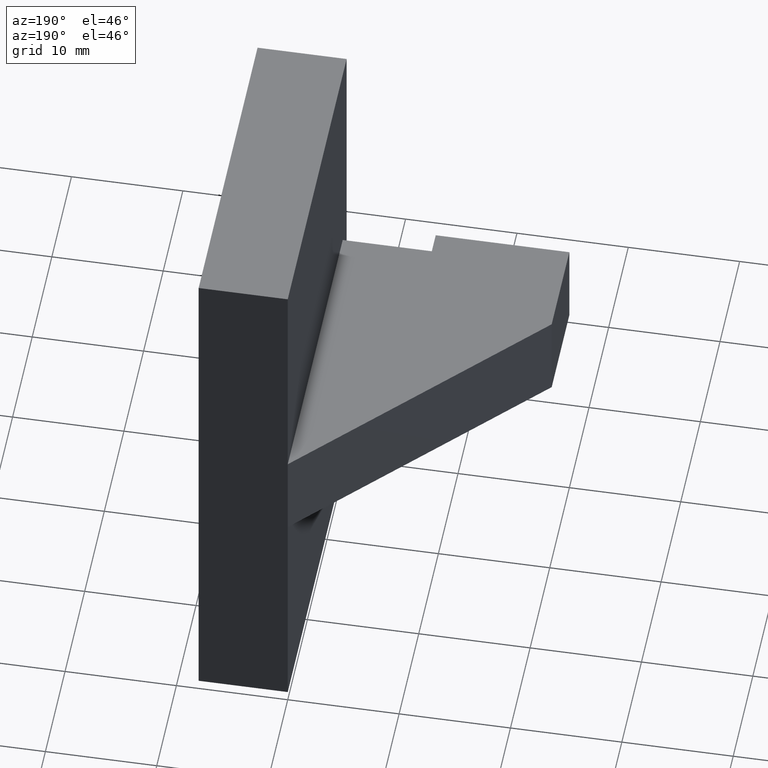
[diagram: clean part render]
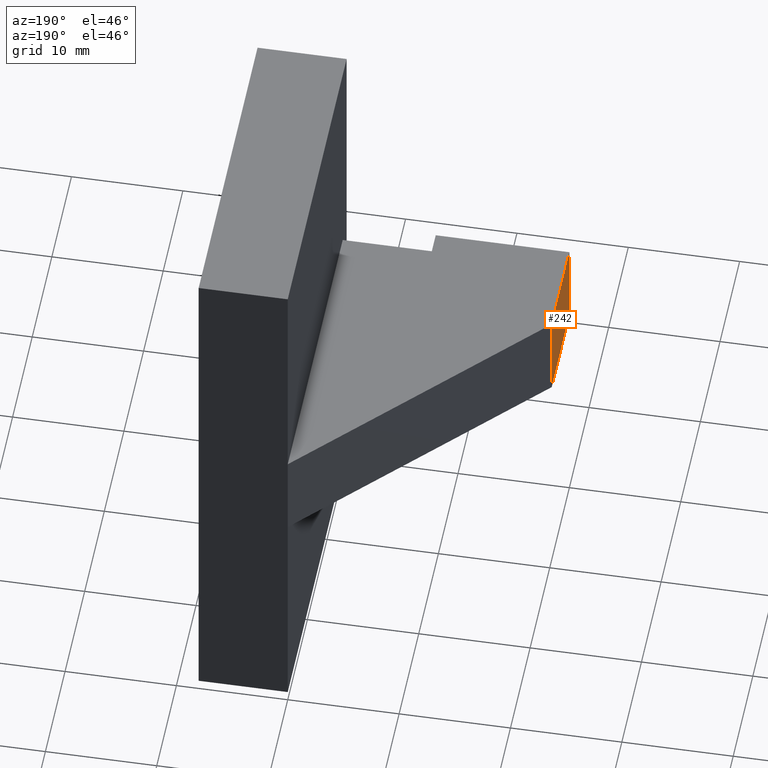
[diagram: same view with one face highlighted and labeled with its STEP entity id]
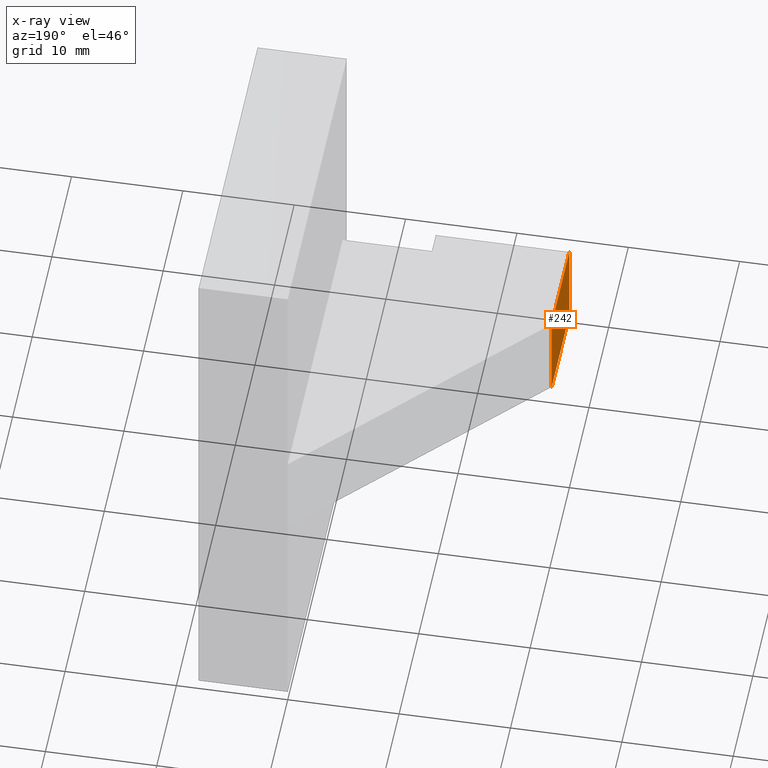
[diagram: x-ray of the same camera — body ghosted, the highlighted face saturated]
A machine part, auxiliary view. The second image highlights one B-rep face of the part: STEP entity #242.
The next image is the same camera in x-ray: the body ghosted, the highlighted face saturated — about 0% of this face is hidden behind the body in this view.
In plain terms, the highlighted planar face has unit normal (-1, -0, 0).
Its self-contained STEP definition (entity closure, byte-faithful):
#28=FACE_OUTER_BOUND('',#41,.T.);
#41=EDGE_LOOP('',(#208,#209,#210,#211));
#61=LINE('',#380,#92);
#66=LINE('',#388,#97);
#72=LINE('',#400,#103);
#73=LINE('',#402,#104);
#92=VECTOR('',#314,10.);
#97=VECTOR('',#321,10.);
#103=VECTOR('',#333,10.);
#104=VECTOR('',#336,10.);
#117=VERTEX_POINT('',#376);
#119=VERTEX_POINT('',#379);
#121=VERTEX_POINT('',#386);
#124=VERTEX_POINT('',#398);
#143=EDGE_CURVE('',#119,#117,#61,.T.);
#148=EDGE_CURVE('',#121,#119,#66,.T.);
#154=EDGE_CURVE('',#117,#124,#72,.T.);
#155=EDGE_CURVE('',#124,#121,#73,.T.);
#208=ORIENTED_EDGE('',*,*,#155,.T.);
#209=ORIENTED_EDGE('',*,*,#148,.T.);
#210=ORIENTED_EDGE('',*,*,#143,.T.);
#211=ORIENTED_EDGE('',*,*,#154,.T.);
#229=PLANE('',#278);
#242=ADVANCED_FACE('',(#28),#229,.T.);
#278=AXIS2_PLACEMENT_3D('',#401,#334,#335);
#314=DIRECTION('',(2.46716227694479E-16,-1.,0.));
#321=DIRECTION('',(0.,0.,-1.));
#333=DIRECTION('',(0.,0.,1.));
#334=DIRECTION('center_axis',(-1.,-2.46716227694479E-16,0.));
#335=DIRECTION('ref_axis',(0.,0.,1.));
#336=DIRECTION('',(-2.46716227694479E-16,1.,0.));
#376=CARTESIAN_POINT('',(-20.,1.66533453693773E-15,-4.));
#379=CARTESIAN_POINT('',(-20.,9.,-4.));
#380=CARTESIAN_POINT('',(-20.,1.66533453693773E-15,-4.));
#386=CARTESIAN_POINT('',(-20.,9.,4.));
#388=CARTESIAN_POINT('',(-20.,9.,0.));
#398=CARTESIAN_POINT('',(-20.,1.66533453693773E-15,4.));
#400=CARTESIAN_POINT('',(-20.,1.66533453693773E-15,0.));
#401=CARTESIAN_POINT('Origin',(-20.,1.66533453693773E-15,0.));
#402=CARTESIAN_POINT('',(-20.,1.66533453693773E-15,4.));